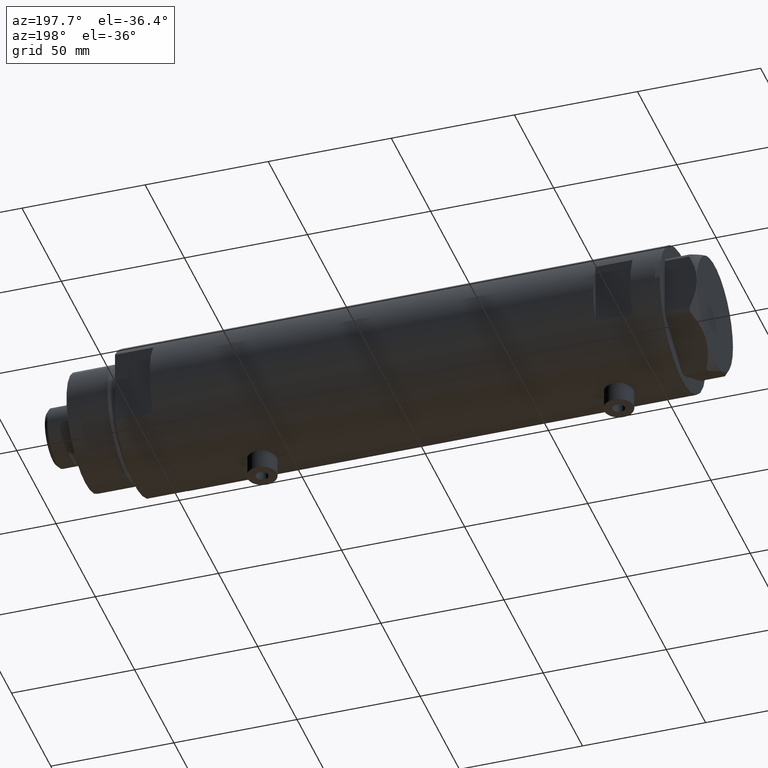
[diagram: clean part render]
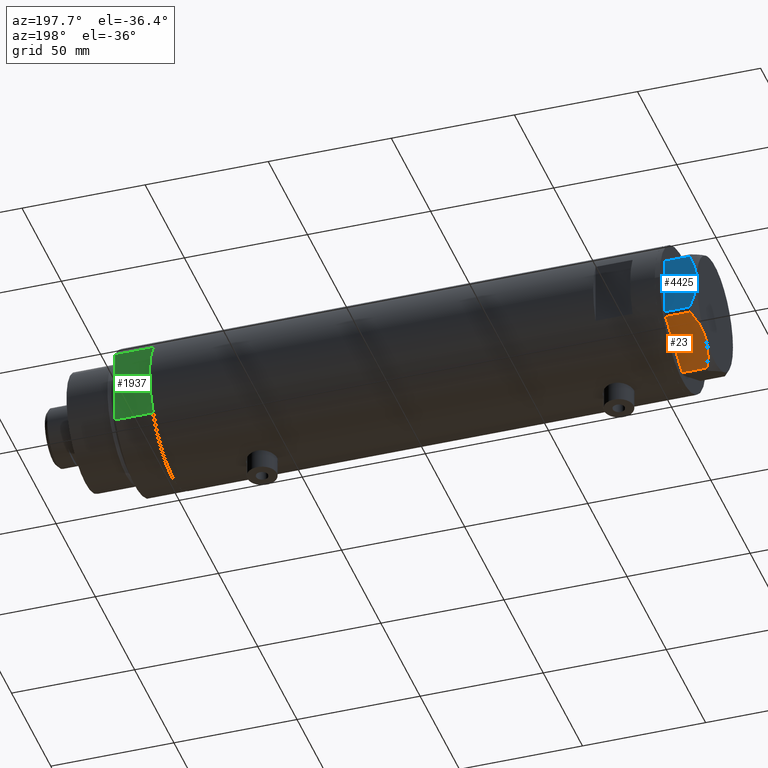
[diagram: same view with three faces highlighted in distinct colors, each labeled with its STEP entity id]
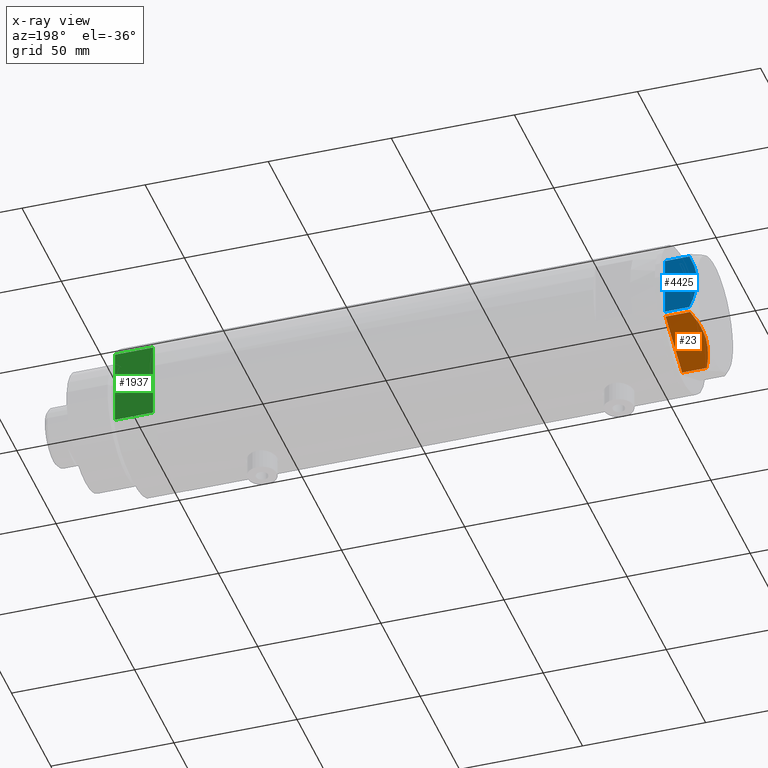
[diagram: x-ray of the same camera — body ghosted, the three highlighted faces saturated]
A machine part, auxiliary view with three faces highlighted in distinct colors.
The next image is the same camera in x-ray (body ghosted, the three faces saturated) — at least one of them is partly hidden behind the body in this view.
Their STEP definitions:

[orange] entity #23 — the highlighted planar face has unit normal (0, -0.5, 0.866).
#23 = ADVANCED_FACE ( 'NONE', ( #678 ), #4729, .F. ) ;
#58 = DIRECTION ( 'NONE',  ( 0.000000000000000000, 0.000000000000000000, 1.000000000000000000 ) ) ;
#153 = CARTESIAN_POINT ( 'NONE',  ( 5.229981517798068857, 23.53858114556529912, 11.89212886775839451 ) ) ;
#248 = CARTESIAN_POINT ( 'NONE',  ( 22.03005154776139207, 13.83905619136154463, 9.983800287807527596 ) ) ;
#319 = EDGE_CURVE ( 'NONE', #3987, #4636, #496, .T. ) ;
#374 = VECTOR ( 'NONE', #2755, 1000.000000000000000 ) ;
#422 = CARTESIAN_POINT ( 'NONE',  ( 22.03005154776139207, 13.83905619136154463, 9.983800287807527596 ) ) ;
#488 = EDGE_CURVE ( 'NONE', #854, #3252, #4677, .T. ) ;
#496 = LINE ( 'NONE', #1891, #3768 ) ;
#514 = CARTESIAN_POINT ( 'NONE',  ( 3.925137811030053214, 24.29193301091819279, 11.39727285399137813 ) ) ;
#565 = CARTESIAN_POINT ( 'NONE',  ( 9.678244919010090541, 20.97037507344921892, 13.00000000000000888 ) ) ;
#678 = FACE_OUTER_BOUND ( 'NONE', #1573, .T. ) ;
#796 = CARTESIAN_POINT ( 'NONE',  ( 12.41906678023027055, 19.38796083407295612, 12.98168640760940562 ) ) ;
#854 = VERTEX_POINT ( 'NONE', #248 ) ;
#892 = CARTESIAN_POINT ( 'NONE',  ( 0.9699484522385838359, 25.99811238272274139, 9.983800287807635954 ) ) ;
#957 = DIRECTION ( 'NONE',  ( -0.8660254037844415942, 0.4999999999999949485, 0.000000000000000000 ) ) ;
#1277 = CARTESIAN_POINT ( 'NONE',  ( 4.357207709416042185, 24.04247733877631887, 11.57055225522968378 ) ) ;
#1400 = DIRECTION ( 'NONE',  ( -0.4999999999999948930, -0.8660254037844415942, 0.000000000000000000 ) ) ;
#1471 = CARTESIAN_POINT ( 'NONE',  ( 18.67981377008996802, 15.77331687414936567, 11.62937486882604965 ) ) ;
#1513 = CARTESIAN_POINT ( 'NONE',  ( 20.37350567916420374, 14.79546339452108228, 10.87778242614341728 ) ) ;
#1573 = EDGE_LOOP ( 'NONE', ( #2888, #1769, #3191, #3898, #2826 ) ) ;
#1702 = CARTESIAN_POINT ( 'NONE',  ( 0.9699484522385838359, 25.99811238272274139, 9.983800287807635954 ) ) ;
#1724 = CARTESIAN_POINT ( 'NONE',  ( 22.03005154776124996, 13.83905619136162635, 0.000000000000000000 ) ) ;
#1769 = ORIENTED_EDGE ( 'NONE', *, *, #488, .T. ) ;
#1891 = CARTESIAN_POINT ( 'NONE',  ( 0.9699484522385886098, 25.99811238272273783, 13.00000000000000000 ) ) ;
#1984 = CARTESIAN_POINT ( 'NONE',  ( 11.49999999999990408, 19.91858428704219364, 13.00000000000000000 ) ) ;
#2203 = CARTESIAN_POINT ( 'NONE',  ( 11.49999999999990408, 19.91858428704219364, 13.00000000000000000 ) ) ;
#2207 = B_SPLINE_CURVE_WITH_KNOTS ( 'NONE', 3,
 ( #422, #1513, #1471, #4072, #2226, #2999, #4121, #796, #4483, #2203 ),
 .UNSPECIFIED., .F., .F.,
 ( 4, 2, 2, 2, 4 ),
 ( 0.001228959670438484414, 0.007497079744270713011, 0.01063113978118682308, 0.01219816979964488159, 0.01376519981810293836 ),
 .UNSPECIFIED. ) ;
#2226 = CARTESIAN_POINT ( 'NONE',  ( 15.16323225988329604, 17.80361615569442790, 12.63731396715686728 ) ) ;
#2391 = CARTESIAN_POINT ( 'NONE',  ( 22.99999999999981171, 13.27905619136164184, 0.000000000000000000 ) ) ;
#2426 = CARTESIAN_POINT ( 'NONE',  ( 5.671686373602804920, 23.28356272816407113, 12.04068176582928018 ) ) ;
#2448 = CARTESIAN_POINT ( 'NONE',  ( 22.99999999999981171, 13.27905619136164184, 13.00000000000000000 ) ) ;
#2586 = EDGE_CURVE ( 'NONE', #4453, #4636, #3833, .T. ) ;
#2751 = AXIS2_PLACEMENT_3D ( 'NONE', #2448, #1400, #2879 ) ;
#2755 = DIRECTION ( 'NONE',  ( 0.000000000000000000, 0.000000000000000000, -1.000000000000000000 ) ) ;
#2826 = ORIENTED_EDGE ( 'NONE', *, *, #2586, .F. ) ;
#2851 = EDGE_CURVE ( 'NONE', #854, #4453, #2207, .T. ) ;
#2879 = DIRECTION ( 'NONE',  ( 0.8660254037844415942, -0.4999999999999948930, 0.000000000000000000 ) ) ;
#2888 = ORIENTED_EDGE ( 'NONE', *, *, #2851, .F. ) ;
#2999 = CARTESIAN_POINT ( 'NONE',  ( 13.80210138309696788, 18.58946543380931260, 12.85271263895571181 ) ) ;
#3075 = EDGE_CURVE ( 'NONE', #3252, #3987, #3871, .T. ) ;
#3191 = ORIENTED_EDGE ( 'NONE', *, *, #3075, .T. ) ;
#3252 = VERTEX_POINT ( 'NONE', #1724 ) ;
#3293 = CARTESIAN_POINT ( 'NONE',  ( 11.49999999999990408, 19.91858428704219364, 13.00000000000000000 ) ) ;
#3329 = CARTESIAN_POINT ( 'NONE',  ( 0.9699484522385886098, 25.99811238272273783, 0.000000000000000000 ) ) ;
#3768 = VECTOR ( 'NONE', #58, 1000.000000000000000 ) ;
#3833 = B_SPLINE_CURVE_WITH_KNOTS ( 'NONE', 3,
 ( #1984, #565, #4217, #2426, #153, #1277, #514, #3905, #4535, #892 ),
 .UNSPECIFIED., .F., .F.,
 ( 4, 2, 2, 2, 4 ),
 ( 0.01376519981810293836, 0.01998941321701560442, 0.02154546656674377267, 0.02310151991647194092, 0.02621362661592828089 ),
 .UNSPECIFIED. ) ;
#3871 = LINE ( 'NONE', #2391, #4168 ) ;
#3898 = ORIENTED_EDGE ( 'NONE', *, *, #319, .T. ) ;
#3905 = CARTESIAN_POINT ( 'NONE',  ( 2.640413878806743053, 25.03366871902166935, 10.84420102443836598 ) ) ;
#3987 = VERTEX_POINT ( 'NONE', #3329 ) ;
#4072 = CARTESIAN_POINT ( 'NONE',  ( 16.05322244309624224, 17.28978008384030929, 12.42689993760370015 ) ) ;
#4121 = CARTESIAN_POINT ( 'NONE',  ( 13.34348161667004362, 18.85424967941157703, 12.90784227772834392 ) ) ;
#4168 = VECTOR ( 'NONE', #957, 999.9999999999998863 ) ;
#4217 = CARTESIAN_POINT ( 'NONE',  ( 7.884645426989624895, 22.00591022298558741, 12.70765172847692526 ) ) ;
#4453 = VERTEX_POINT ( 'NONE', #3293 ) ;
#4483 = CARTESIAN_POINT ( 'NONE',  ( 11.95865151389051384, 19.65378171203322921, 13.00000000000000355 ) ) ;
#4535 = CARTESIAN_POINT ( 'NONE',  ( 1.799196345396830266, 25.51934588838290452, 10.43131750950938930 ) ) ;
#4601 = CARTESIAN_POINT ( 'NONE',  ( 22.03005154776124996, 13.83905619136162635, 13.00000000000000000 ) ) ;
#4636 = VERTEX_POINT ( 'NONE', #1702 ) ;
#4677 = LINE ( 'NONE', #4601, #374 ) ;
#4729 = PLANE ( 'NONE',  #2751 ) ;

[blue] entity #4425 — the highlighted planar face has unit normal (0, -1, 0).
#116 = CARTESIAN_POINT ( 'NONE',  ( 23.00000000000002132, -7.239756182922042704, 11.89218606342284978 ) ) ;
#237 = LINE ( 'NONE', #4666, #2852 ) ;
#270 = VERTEX_POINT ( 'NONE', #3616 ) ;
#294 = EDGE_LOOP ( 'NONE', ( #1164, #3243, #4219, #2671, #641 ) ) ;
#329 = CARTESIAN_POINT ( 'NONE',  ( 22.99999999999990763, 4.203926054642130872, 12.64168122312251263 ) ) ;
#352 = CARTESIAN_POINT ( 'NONE',  ( 22.99999999999984723, 10.22738952213813590, 10.83247031367476687 ) ) ;
#425 = B_SPLINE_CURVE_WITH_KNOTS ( 'NONE', 3,
 ( #2268, #4132, #3796, #1575, #3744, #116, #1194, #4497, #2602, #4541 ),
 .UNSPECIFIED., .F., .F.,
 ( 4, 2, 2, 2, 4 ),
 ( 0.03516523594057416324, 0.03831677594541234994, 0.03989254594783143981, 0.04146831595025052969, 0.04777139595992689614 ),
 .UNSPECIFIED. ) ;
#543 = DIRECTION ( 'NONE',  ( -1.000000000000000000, -1.032024811306395780E-14, 0.000000000000000000 ) ) ;
#546 = CARTESIAN_POINT ( 'NONE',  ( 23.00000000000007461, -12.15905619136117544, 9.983800287807614637 ) ) ;
#613 = CARTESIAN_POINT ( 'NONE',  ( 22.99999999999982947, 11.68282849742354301, 10.20637235269540888 ) ) ;
#641 = ORIENTED_EDGE ( 'NONE', *, *, #2729, .F. ) ;
#657 = CARTESIAN_POINT ( 'NONE',  ( 22.99999999999993960, 1.063773509315898647, 12.98143808360683060 ) ) ;
#681 = CARTESIAN_POINT ( 'NONE',  ( 22.99999999999994671, 0.5295934231899315225, 13.00000000000009770 ) ) ;
#707 = CARTESIAN_POINT ( 'NONE',  ( 22.99999999999992184, 2.643615312305319875, 12.85430456063626714 ) ) ;
#894 = FACE_OUTER_BOUND ( 'NONE', #294, .T. ) ;
#948 = VERTEX_POINT ( 'NONE', #546 ) ;
#1019 = DIRECTION ( 'NONE',  ( 0.000000000000000000, 0.000000000000000000, -1.000000000000000000 ) ) ;
#1164 = ORIENTED_EDGE ( 'NONE', *, *, #2022, .F. ) ;
#1194 = CARTESIAN_POINT ( 'NONE',  ( 23.00000000000001421, -6.734330413511261604, 12.03938974125266448 ) ) ;
#1482 = DIRECTION ( 'NONE',  ( 0.000000000000000000, 0.000000000000000000, 1.000000000000000000 ) ) ;
#1554 = CARTESIAN_POINT ( 'NONE',  ( 22.99999999999982236, 12.15905619136166571, 13.00000000000000000 ) ) ;
#1575 = CARTESIAN_POINT ( 'NONE',  ( 23.00000000000004263, -8.748091966971225375, 11.39681897828457124 ) ) ;
#1622 = B_SPLINE_CURVE_WITH_KNOTS ( 'NONE', 3,
 ( #4029, #681, #657, #2451, #707, #329, #2476, #3662, #3609, #2882, #352, #3170, #613, #3566 ),
 .UNSPECIFIED., .F., .F.,
 ( 4, 2, 2, 2, 2, 2, 4 ),
 ( 0.04777139595992689614, 0.04934380568070229761, 0.05091621540147769215, 0.05406103484302849510, 0.05720585428457929111, 0.05877826400535468565, 0.06035067372613008713 ),
 .UNSPECIFIED. ) ;
#1921 = LINE ( 'NONE', #1554, #2314 ) ;
#1960 = EDGE_CURVE ( 'NONE', #2112, #2622, #1921, .T. ) ;
#1974 = VERTEX_POINT ( 'NONE', #4471 ) ;
#2014 = DIRECTION ( 'NONE',  ( 1.032024811306395780E-14, -1.000000000000000000, 0.000000000000000000 ) ) ;
#2022 = EDGE_CURVE ( 'NONE', #948, #270, #425, .T. ) ;
#2112 = VERTEX_POINT ( 'NONE', #3862 ) ;
#2268 = CARTESIAN_POINT ( 'NONE',  ( 23.00000000000007461, -12.15905619136117544, 9.983800287807614637 ) ) ;
#2314 = VECTOR ( 'NONE', #1482, 1000.000000000000000 ) ;
#2377 = PLANE ( 'NONE',  #3946 ) ;
#2451 = CARTESIAN_POINT ( 'NONE',  ( 22.99999999999992539, 2.119709279062088836, 12.90853521217320043 ) ) ;
#2476 = CARTESIAN_POINT ( 'NONE',  ( 22.99999999999990052, 5.228918809624289565, 12.43333703384985256 ) ) ;
#2523 = LINE ( 'NONE', #3173, #2769 ) ;
#2602 = CARTESIAN_POINT ( 'NONE',  ( 22.99999999999996447, -2.122900714017910584, 13.00000000000008882 ) ) ;
#2622 = VERTEX_POINT ( 'NONE', #3511 ) ;
#2671 = ORIENTED_EDGE ( 'NONE', *, *, #1960, .T. ) ;
#2700 = DIRECTION ( 'NONE',  ( -1.032024811306395780E-14, 1.000000000000000000, 0.000000000000000000 ) ) ;
#2729 = EDGE_CURVE ( 'NONE', #270, #2622, #1622, .T. ) ;
#2769 = VECTOR ( 'NONE', #1019, 1000.000000000000000 ) ;
#2852 = VECTOR ( 'NONE', #2700, 1000.000000000000000 ) ;
#2882 = CARTESIAN_POINT ( 'NONE',  ( 22.99999999999985434, 9.734726261263476843, 11.02892470009566139 ) ) ;
#3170 = CARTESIAN_POINT ( 'NONE',  ( 22.99999999999984368, 11.20155944044835472, 10.42110268263274264 ) ) ;
#3173 = CARTESIAN_POINT ( 'NONE',  ( 23.00000000000007461, -12.15905619136117721, 13.00000000000000000 ) ) ;
#3243 = ORIENTED_EDGE ( 'NONE', *, *, #3812, .T. ) ;
#3511 = CARTESIAN_POINT ( 'NONE',  ( 22.99999999999982236, 12.15905619136166038, 9.983800287807609308 ) ) ;
#3566 = CARTESIAN_POINT ( 'NONE',  ( 22.99999999999982236, 12.15905619136166038, 9.983800287807609308 ) ) ;
#3597 = EDGE_CURVE ( 'NONE', #1974, #2112, #237, .T. ) ;
#3609 = CARTESIAN_POINT ( 'NONE',  ( 22.99999999999986500, 8.252113629125442884, 11.58164206268022056 ) ) ;
#3616 = CARTESIAN_POINT ( 'NONE',  ( 22.99999999999995026, 2.373657066004705010E-13, 13.00000000000000000 ) ) ;
#3662 = CARTESIAN_POINT ( 'NONE',  ( 22.99999999999987210, 7.253003311474555126, 11.90327681034763430 ) ) ;
#3744 = CARTESIAN_POINT ( 'NONE',  ( 23.00000000000003197, -8.246028007352199651, 11.57113180864690705 ) ) ;
#3796 = CARTESIAN_POINT ( 'NONE',  ( 23.00000000000005684, -10.23890159976106240, 10.84081242829091529 ) ) ;
#3812 = EDGE_CURVE ( 'NONE', #948, #1974, #2523, .T. ) ;
#3857 = CARTESIAN_POINT ( 'NONE',  ( 23.00000000000008527, -13.27905619136115867, 13.00000000000000000 ) ) ;
#3862 = CARTESIAN_POINT ( 'NONE',  ( 22.99999999999982236, 12.15905619136166571, 0.000000000000000000 ) ) ;
#3946 = AXIS2_PLACEMENT_3D ( 'NONE', #3857, #543, #2014 ) ;
#4029 = CARTESIAN_POINT ( 'NONE',  ( 22.99999999999995026, 2.373657066004705010E-13, 13.00000000000000000 ) ) ;
#4132 = CARTESIAN_POINT ( 'NONE',  ( 23.00000000000006750, -11.20825071633899483, 10.42817330637845608 ) ) ;
#4219 = ORIENTED_EDGE ( 'NONE', *, *, #3597, .T. ) ;
#4425 = ADVANCED_FACE ( 'NONE', ( #894 ), #2377, .F. ) ;
#4471 = CARTESIAN_POINT ( 'NONE',  ( 23.00000000000007461, -12.15905619136117721, 0.000000000000000000 ) ) ;
#4497 = CARTESIAN_POINT ( 'NONE',  ( 22.99999999999999289, -4.194757081058820170, 12.70300035152520479 ) ) ;
#4541 = CARTESIAN_POINT ( 'NONE',  ( 22.99999999999995026, 2.373657066004705010E-13, 13.00000000000000000 ) ) ;
#4666 = CARTESIAN_POINT ( 'NONE',  ( 23.00000000000008527, -13.27905619136115867, 0.000000000000000000 ) ) ;

[green] entity #1937 — the highlighted planar face has unit normal (0, -1, -0).
#84 = DIRECTION ( 'NONE',  ( 1.000000000000000000, 0.000000000000000000, 0.000000000000000000 ) ) ;
#126 = CARTESIAN_POINT ( 'NONE',  ( -15.66045976336583401, 25.00000000000000000, 0.000000000000000000 ) ) ;
#200 = DIRECTION ( 'NONE',  ( -0.000000000000000000, -0.000000000000000000, 1.000000000000000000 ) ) ;
#395 = VECTOR ( 'NONE', #617, 1000.000000000000000 ) ;
#453 = CARTESIAN_POINT ( 'NONE',  ( -15.66045976336583401, 25.00000000000000000, 0.000000000000000000 ) ) ;
#617 = DIRECTION ( 'NONE',  ( 1.000000000000000000, 0.000000000000000000, 0.000000000000000000 ) ) ;
#672 = LINE ( 'NONE', #4258, #2086 ) ;
#697 = AXIS2_PLACEMENT_3D ( 'NONE', #453, #1850, #831 ) ;
#758 = VECTOR ( 'NONE', #200, 1000.000000000000000 ) ;
#794 = EDGE_LOOP ( 'NONE', ( #3699, #3468, #1867, #1025, #4791, #3571 ) ) ;
#831 = DIRECTION ( 'NONE',  ( 0.000000000000000000, -0.000000000000000000, -1.000000000000000000 ) ) ;
#832 = VECTOR ( 'NONE', #4777, 1000.000000000000000 ) ;
#872 = LINE ( 'NONE', #1278, #395 ) ;
#904 = VECTOR ( 'NONE', #84, 1000.000000000000000 ) ;
#1025 = ORIENTED_EDGE ( 'NONE', *, *, #1078, .F. ) ;
#1078 = EDGE_CURVE ( 'NONE', #2389, #2271, #3392, .T. ) ;
#1223 = LINE ( 'NONE', #4160, #832 ) ;
#1278 = CARTESIAN_POINT ( 'NONE',  ( -15.66045976336583401, 25.00000000000000000, 0.000000000000000000 ) ) ;
#1407 = PLANE ( 'NONE',  #697 ) ;
#1636 = LINE ( 'NONE', #2011, #758 ) ;
#1665 = CARTESIAN_POINT ( 'NONE',  ( -15.66045976336583045, 25.00000000000000000, 15.50000000000000000 ) ) ;
#1850 = DIRECTION ( 'NONE',  ( 0.000000000000000000, -1.000000000000000000, 0.000000000000000000 ) ) ;
#1867 = ORIENTED_EDGE ( 'NONE', *, *, #4304, .F. ) ;
#1897 = CARTESIAN_POINT ( 'NONE',  ( -15.66045976336583401, 25.00000000000000000, 0.000000000000000000 ) ) ;
#1937 = ADVANCED_FACE ( 'NONE', ( #4736 ), #1407, .F. ) ;
#1969 = VERTEX_POINT ( 'NONE', #1897 ) ;
#2011 = CARTESIAN_POINT ( 'NONE',  ( 15.66045976336583401, 25.00000000000000000, 0.000000000000000000 ) ) ;
#2025 = CARTESIAN_POINT ( 'NONE',  ( 15.66045976336583045, 25.00000000000000000, 15.50000000000000000 ) ) ;
#2086 = VECTOR ( 'NONE', #3603, 1000.000000000000000 ) ;
#2271 = VERTEX_POINT ( 'NONE', #4423 ) ;
#2281 = VERTEX_POINT ( 'NONE', #2458 ) ;
#2389 = VERTEX_POINT ( 'NONE', #2575 ) ;
#2442 = DIRECTION ( 'NONE',  ( 1.000000000000000000, 0.000000000000000000, 0.000000000000000000 ) ) ;
#2458 = CARTESIAN_POINT ( 'NONE',  ( 15.66045976336582690, 25.00000000000000000, 0.000000000000000000 ) ) ;
#2575 = CARTESIAN_POINT ( 'NONE',  ( -7.141428428542853091, 25.00000000000000000, 0.000000000000000000 ) ) ;
#2605 = EDGE_CURVE ( 'NONE', #2281, #3124, #1636, .T. ) ;
#2942 = EDGE_CURVE ( 'NONE', #1969, #3555, #1223, .T. ) ;
#3124 = VERTEX_POINT ( 'NONE', #2025 ) ;
#3164 = VECTOR ( 'NONE', #2442, 1000.000000000000000 ) ;
#3186 = LINE ( 'NONE', #3919, #3164 ) ;
#3392 = LINE ( 'NONE', #126, #904 ) ;
#3468 = ORIENTED_EDGE ( 'NONE', *, *, #2605, .F. ) ;
#3555 = VERTEX_POINT ( 'NONE', #1665 ) ;
#3571 = ORIENTED_EDGE ( 'NONE', *, *, #2942, .T. ) ;
#3603 = DIRECTION ( 'NONE',  ( 1.000000000000000000, 0.000000000000000000, 0.000000000000000000 ) ) ;
#3699 = ORIENTED_EDGE ( 'NONE', *, *, #4668, .T. ) ;
#3919 = CARTESIAN_POINT ( 'NONE',  ( -15.66045976336583401, 25.00000000000000000, 15.50000000000000000 ) ) ;
#4160 = CARTESIAN_POINT ( 'NONE',  ( -15.66045976336583401, 25.00000000000000000, 0.000000000000000000 ) ) ;
#4258 = CARTESIAN_POINT ( 'NONE',  ( -15.66045976336583401, 25.00000000000000000, 0.000000000000000000 ) ) ;
#4304 = EDGE_CURVE ( 'NONE', #2271, #2281, #872, .T. ) ;
#4423 = CARTESIAN_POINT ( 'NONE',  ( 7.141428428542853091, 25.00000000000000000, 0.000000000000000000 ) ) ;
#4630 = EDGE_CURVE ( 'NONE', #1969, #2389, #672, .T. ) ;
#4668 = EDGE_CURVE ( 'NONE', #3555, #3124, #3186, .T. ) ;
#4736 = FACE_OUTER_BOUND ( 'NONE', #794, .T. ) ;
#4777 = DIRECTION ( 'NONE',  ( -0.000000000000000000, -0.000000000000000000, 1.000000000000000000 ) ) ;
#4791 = ORIENTED_EDGE ( 'NONE', *, *, #4630, .F. ) ;